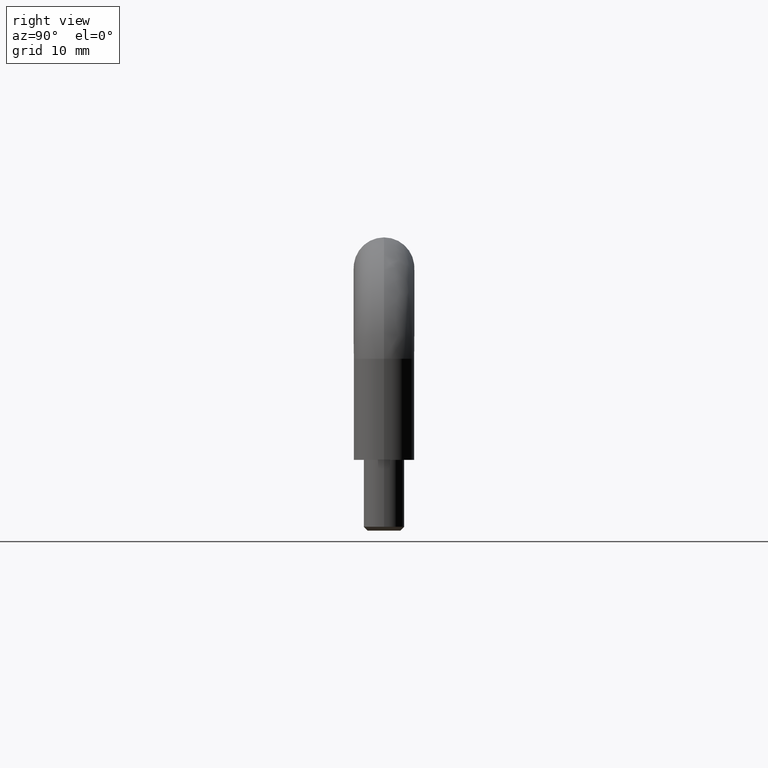
[diagram: clean part render]
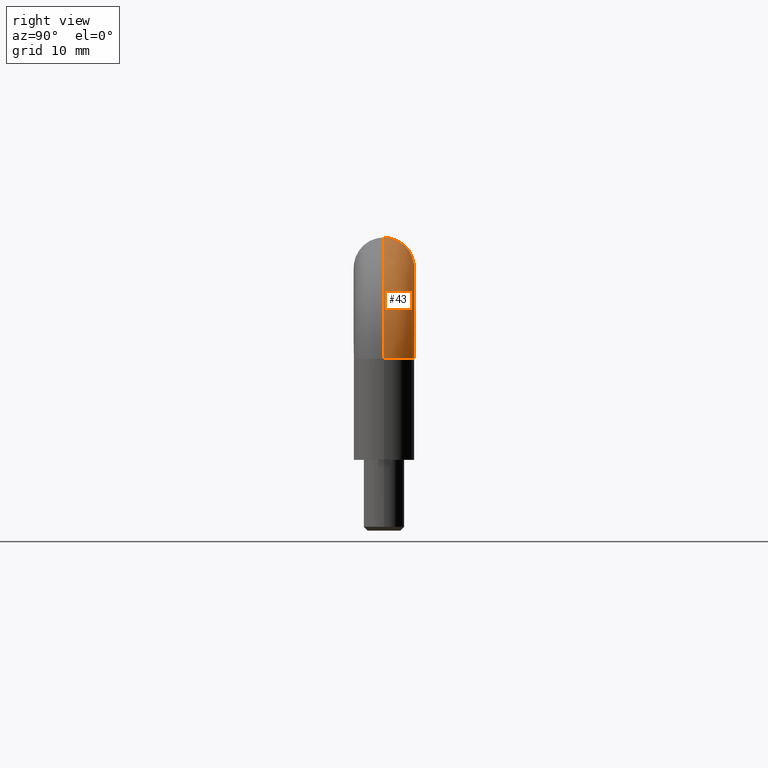
[diagram: same view with one face highlighted and labeled with its STEP entity id]
A machine part, right view. The second image highlights one B-rep face of the part: STEP entity #43.
In plain terms, the highlighted face is a freeform B-spline surface patch.
Its self-contained STEP definition (entity closure, byte-faithful):
#43=ADVANCED_FACE('',(#94),#93,.T.);
#93=( BOUNDED_SURFACE() B_SPLINE_SURFACE( 3,3,((#345,#346,#347,#348,#349,#350,#351),(#352,#353,#354,#355,#356,#357,#358),(#359,#360,#361,#362,#363,#364,#365),(#366,#367,#368,#369,#370,#371,#372),(#373,#374,#375,#376,#377,#378,#379),(#380,#381,#382,#383,#384,#385,#386),(#387,#388,#389,#390,#391,#392,#393)), .UNSPECIFIED.,.F.,.F.,.F.) B_SPLINE_SURFACE_WITH_KNOTS((4,1,1,1,4),(4,1,1,1,4),(0.00000000000E+00,2.50000000000E-01,5.00000000000E-01,7.50000000000E-01,1.00000000000E+00),(0.00000000000E+00,2.49559115838E-01,5.00000000000E-01,7.50440884162E-01,1.00000000000E+00), .UNSPECIFIED. ) GEOMETRIC_REPRESENTATION_ITEM() RATIONAL_B_SPLINE_SURFACE(((1.00000000000E+00,1.00000000000E+00,1.00000000000E+00,1.00000000000E+00,1.00000000000E+00,1.00000000000E+00,1.00000000000E+00),(1.00000000000E+00,1.00000000000E+00,1.00000000000E+00,1.00000000000E+00,1.00000000000E+00,1.00000000000E+00,1.00000000000E+00),(1.00000000000E+00,1.00000000000E+00,1.00000000000E+00,1.00000000000E+00,1.00000000000E+00,1.00000000000E+00,1.00000000000E+00),(1.00000000000E+00,1.00000000000E+00,1.00000000000E+00,1.00000000000E+00,1.00000000000E+00,1.00000000000E+00,1.00000000000E+00),(1.00000000000E+00,1.00000000000E+00,1.00000000000E+00,1.00000000000E+00,1.00000000000E+00,1.00000000000E+00,1.00000000000E+00),(1.00000000000E+00,1.00000000000E+00,1.00000000000E+00,1.00000000000E+00,1.00000000000E+00,1.00000000000E+00,1.00000000000E+00),(1.00000000000E+00,1.00000000000E+00,1.00000000000E+00,1.00000000000E+00,1.00000000000E+00,1.00000000000E+00,1.00000000000E+00))) REPRESENTATION_ITEM('') SURFACE() );
#94=FACE_OUTER_BOUND('',#394,.T.);
#345=CARTESIAN_POINT('',(3.30000000001E+01,0.00000000000E+00,-5.99999999999E+00));
#346=CARTESIAN_POINT('',(3.30000000001E+01,0.00000000000E+00,-4.43197369219E+00));
#347=CARTESIAN_POINT('',(3.23763804226E+01,0.00000000000E+00,-1.29128107197E+00));
#348=CARTESIAN_POINT('',(2.97070376106E+01,0.00000000000E+00,2.70703761053E+00));
#349=CARTESIAN_POINT('',(2.57087189281E+01,0.00000000000E+00,5.37638042249E+00));
#350=CARTESIAN_POINT('',(2.25680263079E+01,0.00000000000E+00,6.00000000000E+00));
#351=CARTESIAN_POINT('',(2.10000000001E+01,0.00000000000E+00,6.00000000000E+00));
#352=CARTESIAN_POINT('',(3.30039136244E+01,7.84902571646E-01,-5.99999999999E+00));
#353=CARTESIAN_POINT('',(3.30039136244E+01,7.84902571646E-01,-4.44468180723E+00));
#354=CARTESIAN_POINT('',(3.23805635011E+01,7.84902571646E-01,-1.28358512467E+00));
#355=CARTESIAN_POINT('',(2.97082160825E+01,7.84902571646E-01,2.70821608237E+00));
#356=CARTESIAN_POINT('',(2.57164148754E+01,7.84902571646E-01,5.38056350101E+00));
#357=CARTESIAN_POINT('',(2.25553181929E+01,7.84902571646E-01,6.00391362429E+00));
#358=CARTESIAN_POINT('',(2.10000000001E+01,7.84902571646E-01,6.00391362429E+00));
#359=CARTESIAN_POINT('',(3.23513091294E+01,2.35139231717E+00,-5.99999999999E+00));
#360=CARTESIAN_POINT('',(3.23513091294E+01,2.35139231717E+00,-4.54678976031E+00));
#361=CARTESIAN_POINT('',(3.17624758334E+01,2.35139231717E+00,-1.53181862989E+00));
#362=CARTESIAN_POINT('',(2.92325798255E+01,2.35139231717E+00,2.23257982537E+00));
#363=CARTESIAN_POINT('',(2.54681813702E+01,2.35139231717E+00,4.76247583335E+00));
#364=CARTESIAN_POINT('',(2.24532102398E+01,2.35139231717E+00,5.35130912930E+00));
#365=CARTESIAN_POINT('',(2.10000000001E+01,2.35139231717E+00,5.35130912930E+00));
#366=CARTESIAN_POINT('',(3.00000000001E+01,3.32731061924E+00,-5.99999999999E+00));
#367=CARTESIAN_POINT('',(3.00000000001E+01,3.32731061924E+00,-4.82398026914E+00));
#368=CARTESIAN_POINT('',(2.95322853170E+01,3.32731061924E+00,-2.46846080398E+00));
#369=CARTESIAN_POINT('',(2.75302782080E+01,3.32731061924E+00,5.30278207895E-01));
#370=CARTESIAN_POINT('',(2.45315391961E+01,3.32731061924E+00,2.53228531687E+00));
#371=CARTESIAN_POINT('',(2.21760197309E+01,3.32731061924E+00,3.00000000000E+00));
#372=CARTESIAN_POINT('',(2.10000000001E+01,3.32731061924E+00,3.00000000000E+00));
#373=CARTESIAN_POINT('',(2.76486908708E+01,2.35139231717E+00,-5.99999999999E+00));
#374=CARTESIAN_POINT('',(2.76486908708E+01,2.35139231717E+00,-5.10117077797E+00));
#375=CARTESIAN_POINT('',(2.73020948005E+01,2.35139231717E+00,-3.40510297807E+00));
#376=CARTESIAN_POINT('',(2.58279765905E+01,2.35139231717E+00,-1.17202340957E+00));
#377=CARTESIAN_POINT('',(2.35948970220E+01,2.35139231717E+00,3.02094800385E-01));
#378=CARTESIAN_POINT('',(2.18988292221E+01,2.35139231717E+00,6.48690870700E-01));
#379=CARTESIAN_POINT('',(2.10000000001E+01,2.35139231717E+00,6.48690870700E-01));
#380=CARTESIAN_POINT('',(2.69960863758E+01,7.84902571646E-01,-5.99999999999E+00));
#381=CARTESIAN_POINT('',(2.69960863758E+01,7.84902571646E-01,-5.20327873105E+00));
#382=CARTESIAN_POINT('',(2.66840071328E+01,7.84902571646E-01,-3.65333648329E+00));
#383=CARTESIAN_POINT('',(2.53523403335E+01,7.84902571647E-01,-1.64765966658E+00));
#384=CARTESIAN_POINT('',(2.33466635168E+01,7.84902571646E-01,-3.15992867271E-01));
#385=CARTESIAN_POINT('',(2.17967212690E+01,7.84902571646E-01,-3.91362428600E-03));
#386=CARTESIAN_POINT('',(2.10000000001E+01,7.84902571646E-01,-3.91362428601E-03));
#387=CARTESIAN_POINT('',(2.70000000001E+01,3.67381906147E-16,-5.99999999999E+00));
#388=CARTESIAN_POINT('',(2.70000000001E+01,3.67381906147E-16,-5.21598684609E+00));
#389=CARTESIAN_POINT('',(2.66881902113E+01,3.67381906147E-16,-3.64564053598E+00));
#390=CARTESIAN_POINT('',(2.53535188054E+01,3.67381906147E-16,-1.64648119474E+00));
#391=CARTESIAN_POINT('',(2.33543594641E+01,3.67381906147E-16,-3.11809788755E-01));
#392=CARTESIAN_POINT('',(2.17840131540E+01,3.67381906147E-16,3.55271367880E-15));
#393=CARTESIAN_POINT('',(2.10000000001E+01,3.67381906147E-16,3.55271367880E-15));
#394=EDGE_LOOP('',(#610,#611,#612,#613));
#610=ORIENTED_EDGE('',*,*,#694,.T.);
#611=ORIENTED_EDGE('',*,*,#685,.T.);
#612=ORIENTED_EDGE('',*,*,#695,.F.);
#613=ORIENTED_EDGE('',*,*,#687,.F.);
#685=EDGE_CURVE('',#734,#726,#735,.T.);
#687=EDGE_CURVE('',#741,#727,#748,.T.);
#694=EDGE_CURVE('',#741,#734,#796,.T.);
#695=EDGE_CURVE('',#727,#726,#802,.T.);
#726=VERTEX_POINT('',#1002);
#727=VERTEX_POINT('',#1003);
#734=VERTEX_POINT('',#1008);
#735=CIRCLE('',#1012,6.00000000000E+00);
#741=VERTEX_POINT('',#1013);
#748=(BOUNDED_CURVE() B_SPLINE_CURVE(3,(#1018,#1019,#1020,#1021,#1022),.UNSPECIFIED.,.F.,.F.) B_SPLINE_CURVE_WITH_KNOTS((4,1,4),(1.57079632680E+00,2.35619449020E+00,3.14159265359E+00),.UNSPECIFIED.) CURVE() GEOMETRIC_REPRESENTATION_ITEM() RATIONAL_B_SPLINE_CURVE((1.00000000000E+00,1.00000000000E+00,1.00000000000E+00,1.00000000000E+00,1.00000000000E+00)) REPRESENTATION_ITEM('') );
#796=CIRCLE('',#1056,3.00000000000E+00);
#802=CIRCLE('',#1060,3.00000000000E+00);
#1002=CARTESIAN_POINT('',(2.10000000001E+01,-1.48029736617E-16,7.40148683083E-17));
#1003=CARTESIAN_POINT('',(2.10000000001E+01,0.00000000000E+00,6.00000000000E+00));
#1008=CARTESIAN_POINT('',(2.70000000001E+01,-1.48029736617E-16,-6.00000000000E+00));
#1009=CARTESIAN_POINT('',(2.10000000001E+01,-3.67381906147E-16,-6.00000000000E+00));
#1010=DIRECTION('',(1.64346021921E-32,-1.00000000000E+00,5.40434465142E-48));
#1011=DIRECTION('',(-1.00000000000E+00,-1.64346021921E-32,2.64973228544E-13));
#1012=AXIS2_PLACEMENT_3D('',#1009,#1010,#1011);
#1013=CARTESIAN_POINT('',(3.30000000001E+01,0.00000000000E+00,-6.00000000000E+00));
#1018=CARTESIAN_POINT('',(3.30000000001E+01,0.00000000000E+00,-5.99999999997E+00));
#1019=CARTESIAN_POINT('',(3.30250591045E+01,0.00000000000E+00,-2.89325030282E+00));
#1020=CARTESIAN_POINT('',(3.04046583478E+01,0.00000000000E+00,3.40465834772E+00));
#1021=CARTESIAN_POINT('',(2.41067496972E+01,0.00000000000E+00,6.02505910442E+00));
#1022=CARTESIAN_POINT('',(2.10000000001E+01,0.00000000000E+00,6.00000000000E+00));
#1053=CARTESIAN_POINT('',(3.00000000001E+01,0.00000000000E+00,-6.00000000000E+00));
#1054=DIRECTION('',(-0.00000000000E+00,0.00000000000E+00,1.00000000000E+00));
#1055=DIRECTION('',(-1.00000000000E+00,-0.00000000000E+00,-0.00000000000E+00));
#1056=AXIS2_PLACEMENT_3D('',#1053,#1054,#1055);
#1057=CARTESIAN_POINT('',(2.10000000001E+01,0.00000000000E+00,3.00000000000E+00));
#1058=DIRECTION('',(-1.00000000000E+00,0.00000000000E+00,0.00000000000E+00));
#1059=DIRECTION('',(-0.00000000000E+00,-0.00000000000E+00,-1.00000000000E+00));
#1060=AXIS2_PLACEMENT_3D('',#1057,#1058,#1059);